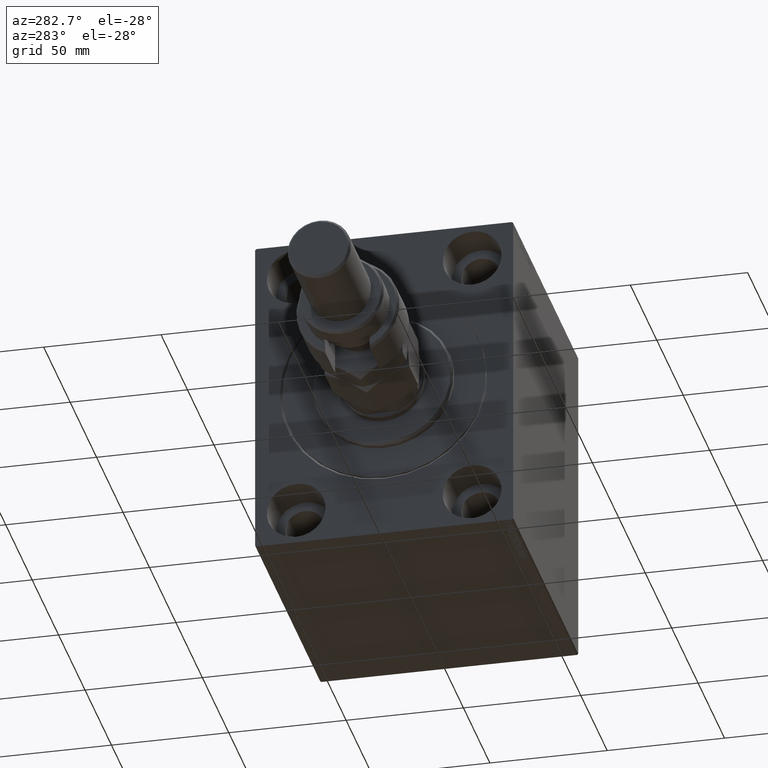
[diagram: clean part render]
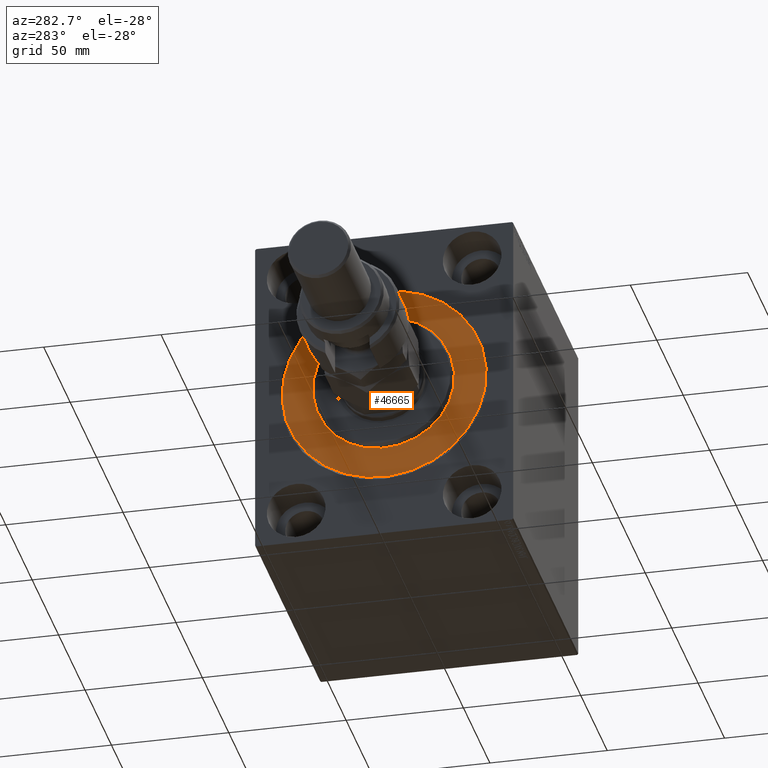
[diagram: same view with one face highlighted and labeled with its STEP entity id]
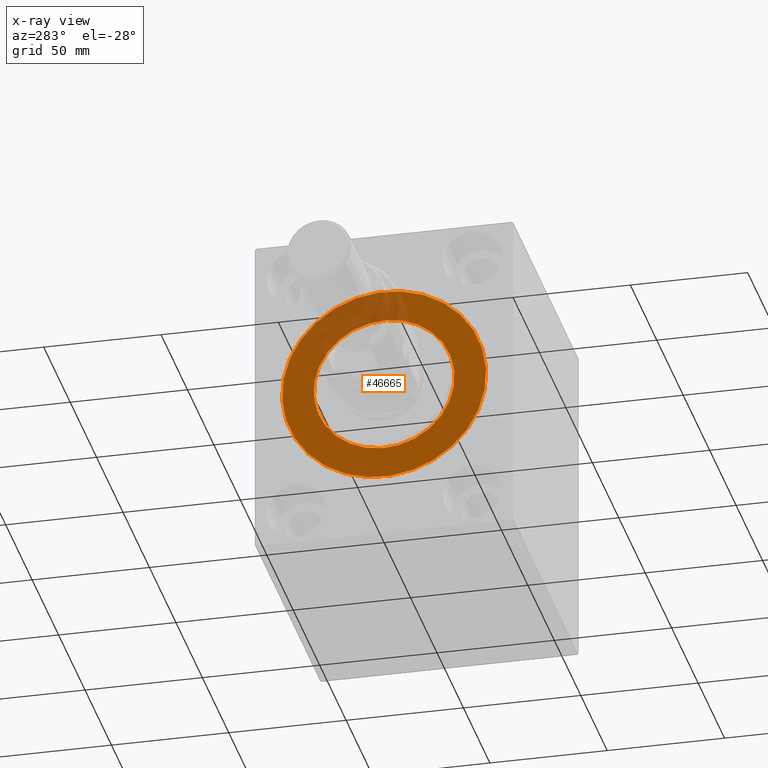
[diagram: x-ray of the same camera — body ghosted, the highlighted face saturated]
A machine part, auxiliary view. The second image highlights one B-rep face of the part: STEP entity #46665.
The next image is the same camera in x-ray: the body ghosted, the highlighted face saturated — about 20% of this face is hidden behind the body in this view.
In plain terms, the highlighted planar face has unit normal (1, 0, -0).
Its self-contained STEP definition (entity closure, byte-faithful):
#245 = CARTESIAN_POINT ( 'NONE',  ( 0.000000000000000000, 0.000000000000000000, 0.000000000000000000 ) ) ;
#1340 = DIRECTION ( 'NONE',  ( 0.000000000000000000, 0.000000000000000000, 1.000000000000000000 ) ) ;
#2673 = AXIS2_PLACEMENT_3D ( 'NONE', #245, #6631, #14628 ) ;
#3516 = EDGE_CURVE ( 'NONE', #46567, #10896, #19855, .T. ) ;
#4181 = EDGE_CURVE ( 'NONE', #29962, #27706, #9946, .T. ) ;
#6105 = ORIENTED_EDGE ( 'NONE', *, *, #3516, .F. ) ;
#6128 = DIRECTION ( 'NONE',  ( -1.000000000000000000, 0.000000000000000000, 0.000000000000000000 ) ) ;
#6631 = DIRECTION ( 'NONE',  ( 1.000000000000000000, -0.000000000000000000, 0.000000000000000000 ) ) ;
#9946 = CIRCLE ( 'NONE', #39322, 43.50000000000000000 ) ;
#10896 = VERTEX_POINT ( 'NONE', #14602 ) ;
#12634 = EDGE_LOOP ( 'NONE', ( #44666, #35244 ) ) ;
#14602 = CARTESIAN_POINT ( 'NONE',  ( 0.000000000000000000, 3.673940397442059178E-15, -30.00000000000000000 ) ) ;
#14628 = DIRECTION ( 'NONE',  ( 0.000000000000000000, 0.000000000000000000, -1.000000000000000000 ) ) ;
#15313 = AXIS2_PLACEMENT_3D ( 'NONE', #27548, #34847, #16922 ) ;
#16922 = DIRECTION ( 'NONE',  ( 0.000000000000000000, 0.000000000000000000, -1.000000000000000000 ) ) ;
#19855 = CIRCLE ( 'NONE', #15313, 30.00000000000000000 ) ;
#23022 = CIRCLE ( 'NONE', #2673, 30.00000000000000000 ) ;
#26107 = DIRECTION ( 'NONE',  ( -1.000000000000000000, 0.000000000000000000, 0.000000000000000000 ) ) ;
#26811 = FACE_OUTER_BOUND ( 'NONE', #12634, .T. ) ;
#27548 = CARTESIAN_POINT ( 'NONE',  ( 0.000000000000000000, 0.000000000000000000, 0.000000000000000000 ) ) ;
#27706 = VERTEX_POINT ( 'NONE', #45574 ) ;
#28289 = CARTESIAN_POINT ( 'NONE',  ( 0.000000000000000000, 0.000000000000000000, 0.000000000000000000 ) ) ;
#28555 = ORIENTED_EDGE ( 'NONE', *, *, #29434, .F. ) ;
#29000 = DIRECTION ( 'NONE',  ( -1.000000000000000000, 0.000000000000000000, 0.000000000000000000 ) ) ;
#29434 = EDGE_CURVE ( 'NONE', #10896, #46567, #23022, .T. ) ;
#29962 = VERTEX_POINT ( 'NONE', #44184 ) ;
#31693 = AXIS2_PLACEMENT_3D ( 'NONE', #34115, #26107, #1340 ) ;
#33649 = PLANE ( 'NONE',  #31693 ) ;
#34115 = CARTESIAN_POINT ( 'NONE',  ( 0.000000000000000000, 0.000000000000000000, 0.000000000000000000 ) ) ;
#34723 = EDGE_CURVE ( 'NONE', #27706, #29962, #36745, .T. ) ;
#34847 = DIRECTION ( 'NONE',  ( 1.000000000000000000, -0.000000000000000000, 0.000000000000000000 ) ) ;
#35244 = ORIENTED_EDGE ( 'NONE', *, *, #34723, .F. ) ;
#36000 = AXIS2_PLACEMENT_3D ( 'NONE', #28289, #6128, #42682 ) ;
#36305 = DIRECTION ( 'NONE',  ( 0.000000000000000000, 0.000000000000000000, 1.000000000000000000 ) ) ;
#36745 = CIRCLE ( 'NONE', #36000, 43.50000000000000000 ) ;
#39322 = AXIS2_PLACEMENT_3D ( 'NONE', #40080, #29000, #36305 ) ;
#40080 = CARTESIAN_POINT ( 'NONE',  ( 0.000000000000000000, 0.000000000000000000, 0.000000000000000000 ) ) ;
#40365 = EDGE_LOOP ( 'NONE', ( #6105, #28555 ) ) ;
#42238 = CARTESIAN_POINT ( 'NONE',  ( 0.000000000000000000, 0.000000000000000000, 30.00000000000000000 ) ) ;
#42682 = DIRECTION ( 'NONE',  ( 0.000000000000000000, 0.000000000000000000, 1.000000000000000000 ) ) ;
#42937 = FACE_BOUND ( 'NONE', #40365, .T. ) ;
#44184 = CARTESIAN_POINT ( 'NONE',  ( 0.000000000000000000, 0.000000000000000000, -43.50000000000000000 ) ) ;
#44666 = ORIENTED_EDGE ( 'NONE', *, *, #4181, .F. ) ;
#45574 = CARTESIAN_POINT ( 'NONE',  ( 0.000000000000000000, 5.327213576290986044E-15, 43.50000000000000000 ) ) ;
#46567 = VERTEX_POINT ( 'NONE', #42238 ) ;
#46665 = ADVANCED_FACE ( 'NONE', ( #42937, #26811 ), #33649, .F. ) ;